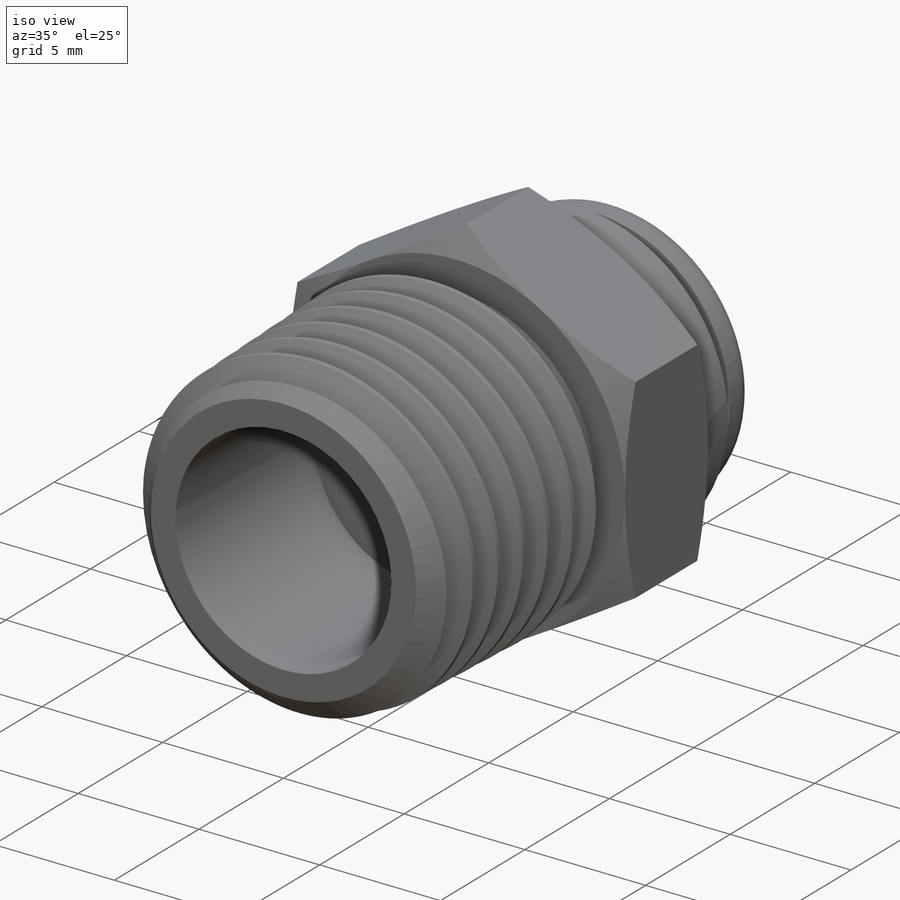
[diagram: iso view]
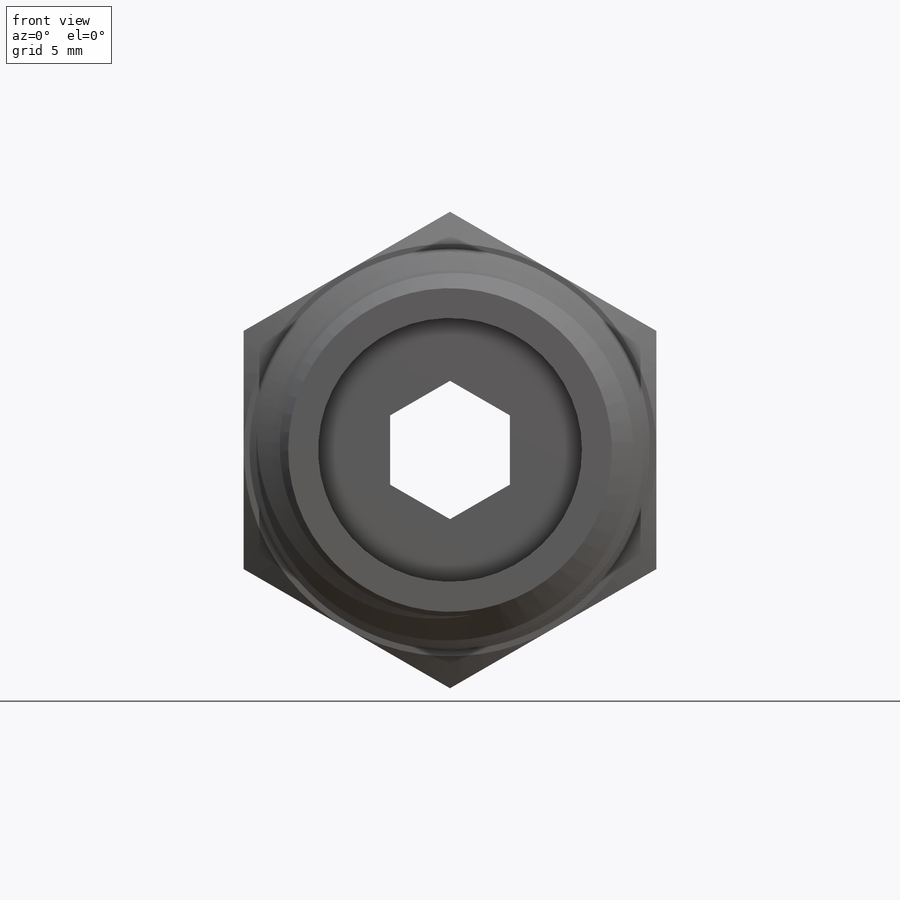
[diagram: front view]
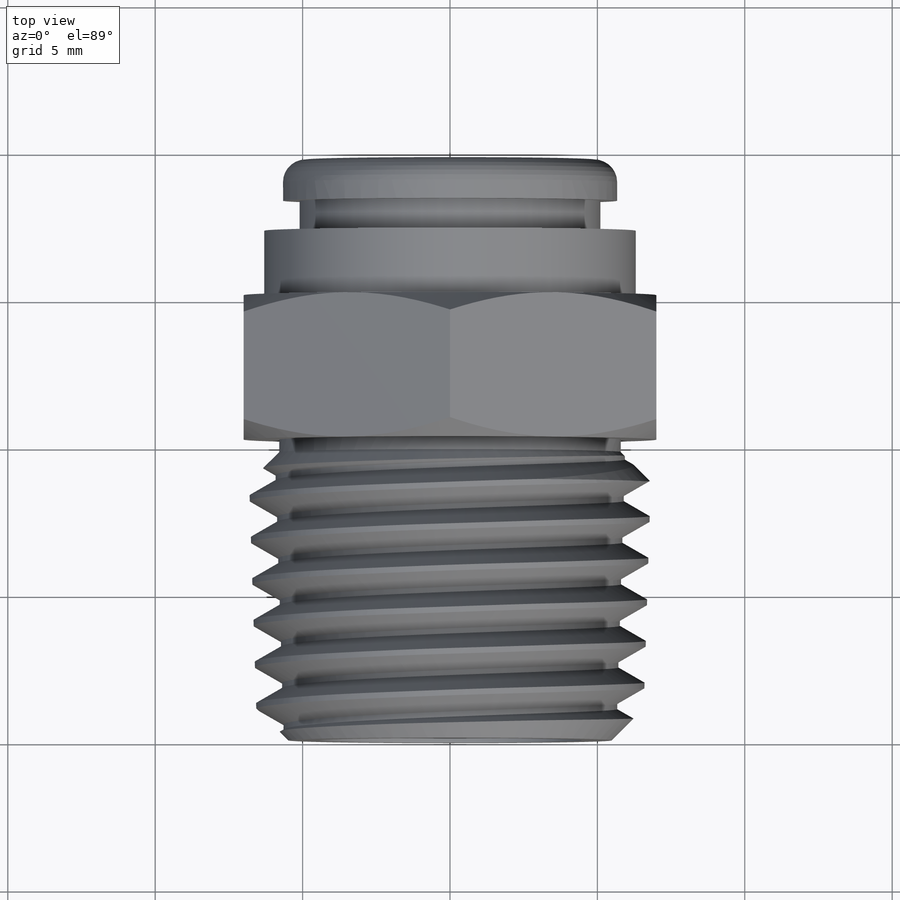
[diagram: top view]
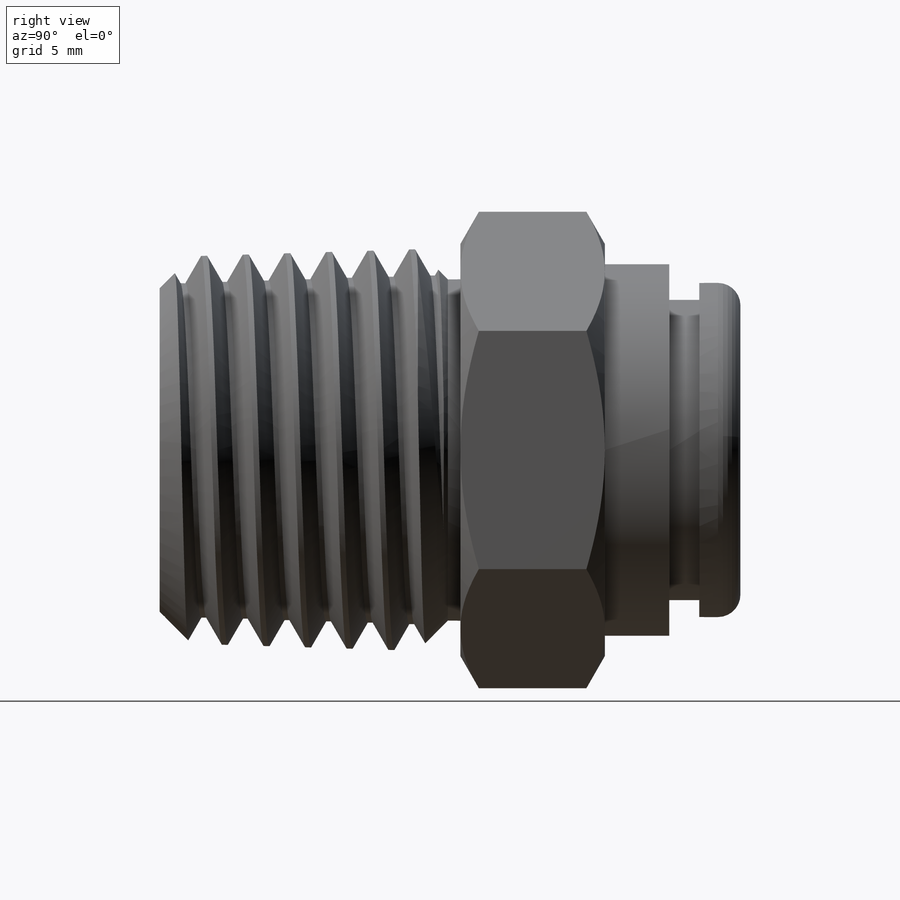
[diagram: right view]
SOLIDWORKS PART (.sldprt)
format: sldprt  version: not decoded by parser v0  size: 916,992 bytes
history: native  units: mm
features: sketch x12, cut_extrude x5, extrude x2, material x1, helix x1, sweep x1, cut_revolve x1, revolve x1 (+15 scaffold rows collapsed)
feature tree (39):
  scaffold x15  (default folders/planes/origin — collapsed)
  material  "Material <not specified>"
  sketch  "Sketch1"  dims[pipe od=13.716mm D1=~13.080488mm]
  extrude  "Extrude1"  Depth=10.20572mm Thread length=10.20572mm
  sketch  "Sketch2"
  helix  "Helix/Spiral1"  Pitch=12.23772mm pitch=1.411111mm
  sketch  "SketchX"  dims[c1.D1=~6.70306mm c2.D1=~11.199122deg c2.D2=~1.783333deg c3.D2=~9.869599mm c3.D1=~13.080488mm]
  sketch  "Sketch3"  dims[c1.D1=~3.36501mm c2.D1=60.0deg c2.D2=~0.176389mm c2.D3=~0.705556mm c2.D4=1.5875mm c3.D4=5.0deg]
  sweep  "Cut-Sweep1"
  sketch  "Sketch4"  dims[c1.D1=1.5875mm c2.D1=~1.783333deg c2.D2=~2.930708mm c3.D2=45.0deg c3.D3=~0.423333mm c3.D4=~1.418198mm c4.D4=45.0deg c4.D5=0.381mm c4.D6=~1.292008mm]
  cut_revolve  "Cut-Revolve1"  Angle=360deg
  sketch  "Sketch5"  dims[Hex Size=14.0mm]
  extrude  "Extrude2"  Depth=4.9mm
  sketch  "Sketch6"
  cut_extrude  "Cut-Extrude1"  [1 undecoded]
  sketch  "Sketch7"
  cut_extrude  "Cut-Extrude2"  [1 undecoded]
  sketch  "Sketch8"  dims[D4=0.762mm H=9.4996mm tube od=6.35mm D1=1.397mm D2=1.016mm D3=10.206mm D7=0.381mm D5=12.6mm D6=11.34mm]
  revolve  "Revolve1"  Angle=360deg
  sketch  "Sketch9"  dims[F2=4.064mm D1=1.27mm]
  cut_extrude  "Cut-Extrude3"  [1 undecoded]
  sketch  "Sketch10"  dims[D1=0.0mm]
  cut_extrude  "Cut-Extrude4"  [1 undecoded]
  sketch  "Sketch11"  dims[D1=1.016mm]
  cut_extrude  "Cut-Extrude5"  Depth=2.032mm
decode coverage: 15 of 23 modeling features carry decoded parameters
note: ~ marks probable driven/reference dimensions
note: 4 parameter values undecoded
summary: no parameter record found for 4 features
note: suppression state not decoded; provenance and decode notes live in map.json
